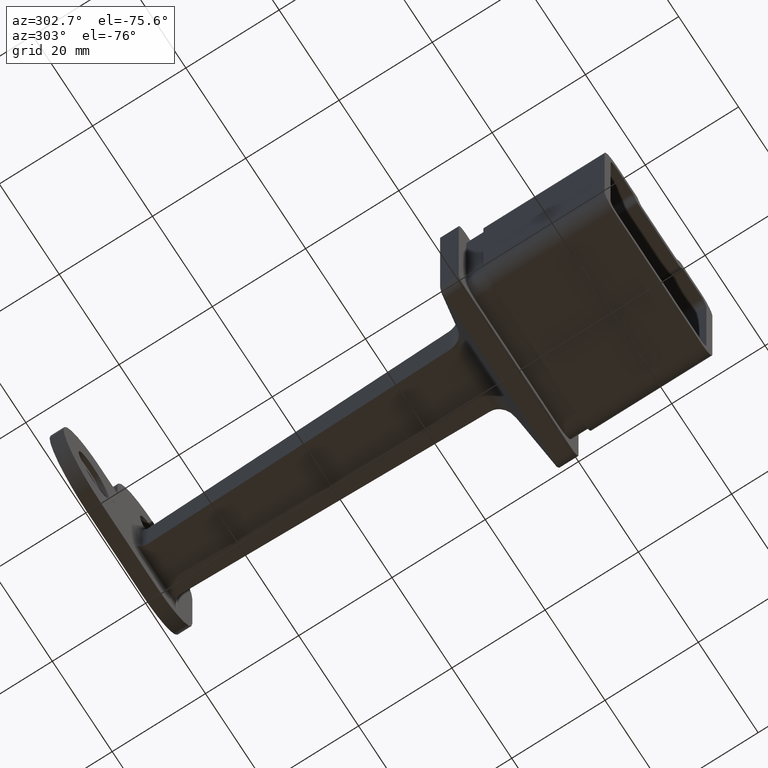
[diagram: clean part render]
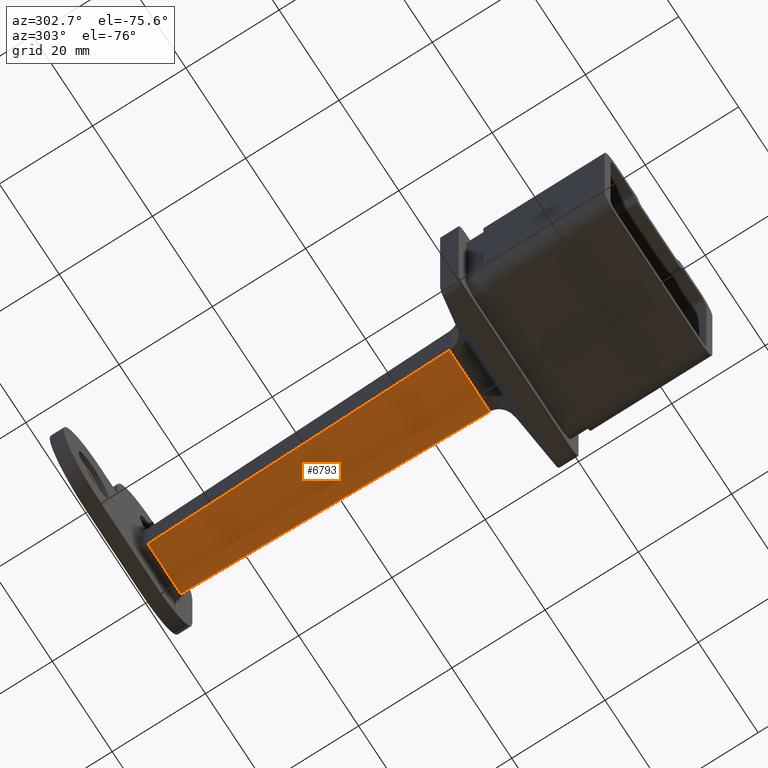
[diagram: same view with one face highlighted and labeled with its STEP entity id]
A machine part, auxiliary view. The second image highlights one B-rep face of the part: STEP entity #6793.
In plain terms, the highlighted planar face has unit normal (0, 0.0192, -0.9998).
Its self-contained STEP definition (entity closure, byte-faithful):
#970 = VERTEX_POINT ( 'NONE', #1381 ) ;
#1335 = ORIENTED_EDGE ( 'NONE', *, *, #10011, .T. ) ;
#1381 = CARTESIAN_POINT ( 'NONE',  ( 5.541462670462997231, 75.96160511520059799, -5.541462670462999007 ) ) ;
#1675 = ORIENTED_EDGE ( 'NONE', *, *, #11894, .F. ) ;
#2110 = EDGE_CURVE ( 'NONE', #970, #4067, #11502, .T. ) ;
#2369 = VERTEX_POINT ( 'NONE', #5177 ) ;
#2386 = DIRECTION ( 'NONE',  ( -1.000000000000000000, -0.000000000000000000, -0.000000000000000000 ) ) ;
#2688 = DIRECTION ( 'NONE',  ( 1.000000000000000000, -0.000000000000000000, 0.000000000000000000 ) ) ;
#2938 = ORIENTED_EDGE ( 'NONE', *, *, #2110, .T. ) ;
#3513 = CARTESIAN_POINT ( 'NONE',  ( -6.994842315696579327, 0.2686156675124535265, -6.994842315696581103 ) ) ;
#3640 = LINE ( 'NONE', #3513, #10438 ) ;
#3677 = LINE ( 'NONE', #6778, #10319 ) ;
#4067 = VERTEX_POINT ( 'NONE', #9825 ) ;
#4330 = CARTESIAN_POINT ( 'NONE',  ( -6.797809215251199078, 10.53023206056478500, -6.797809215251200854 ) ) ;
#4438 = ORIENTED_EDGE ( 'NONE', *, *, #8458, .T. ) ;
#4589 = CARTESIAN_POINT ( 'NONE',  ( 6.999999999999999112, 0.000000000000000000, -7.000000000000000888 ) ) ;
#4604 = DIRECTION ( 'NONE',  ( -0.01919390584724752283, -0.9996315260918166024, -0.01919390584724752283 ) ) ;
#5177 = CARTESIAN_POINT ( 'NONE',  ( -5.541462670462999895, 75.96160511520059799, -5.541462670463001672 ) ) ;
#5386 = AXIS2_PLACEMENT_3D ( 'NONE', #9219, #6218, #13484 ) ;
#5861 = PLANE ( 'NONE',  #5386 ) ;
#5919 = EDGE_LOOP ( 'NONE', ( #1675, #4438, #2938, #1335 ) ) ;
#6218 = DIRECTION ( 'NONE',  ( 0.000000000000000000, 0.01919744239968971047, -0.9998157121216443288 ) ) ;
#6302 = VECTOR ( 'NONE', #2688, 1000.000000000000000 ) ;
#6778 = CARTESIAN_POINT ( 'NONE',  ( 6.999999999999999112, 10.53023206056477967, -6.797809215251198189 ) ) ;
#6793 = ADVANCED_FACE ( 'NONE', ( #10248 ), #5861, .T. ) ;
#8114 = CARTESIAN_POINT ( 'NONE',  ( 6.999999999999999112, 75.96160511520061220, -5.541462670462999007 ) ) ;
#8458 = EDGE_CURVE ( 'NONE', #2369, #970, #12256, .T. ) ;
#8550 = VECTOR ( 'NONE', #12400, 999.9999999999998863 ) ;
#9219 = CARTESIAN_POINT ( 'NONE',  ( 6.999999999999999112, 0.000000000000000000, -7.000000000000000888 ) ) ;
#9825 = CARTESIAN_POINT ( 'NONE',  ( 6.797809215251196413, 10.53023206056477967, -6.797809215251198189 ) ) ;
#10011 = EDGE_CURVE ( 'NONE', #4067, #13062, #3677, .T. ) ;
#10248 = FACE_OUTER_BOUND ( 'NONE', #5919, .T. ) ;
#10319 = VECTOR ( 'NONE', #2386, 1000.000000000000000 ) ;
#10438 = VECTOR ( 'NONE', #4604, 999.9999999999998863 ) ;
#11502 = LINE ( 'NONE', #4589, #8550 ) ;
#11894 = EDGE_CURVE ( 'NONE', #2369, #13062, #3640, .T. ) ;
#12256 = LINE ( 'NONE', #8114, #6302 ) ;
#12400 = DIRECTION ( 'NONE',  ( 0.01919390584724752283, -0.9996315260918166024, -0.01919390584724752283 ) ) ;
#13062 = VERTEX_POINT ( 'NONE', #4330 ) ;
#13484 = DIRECTION ( 'NONE',  ( 0.000000000000000000, 0.9998157121216442178, 0.01919744239968970700 ) ) ;